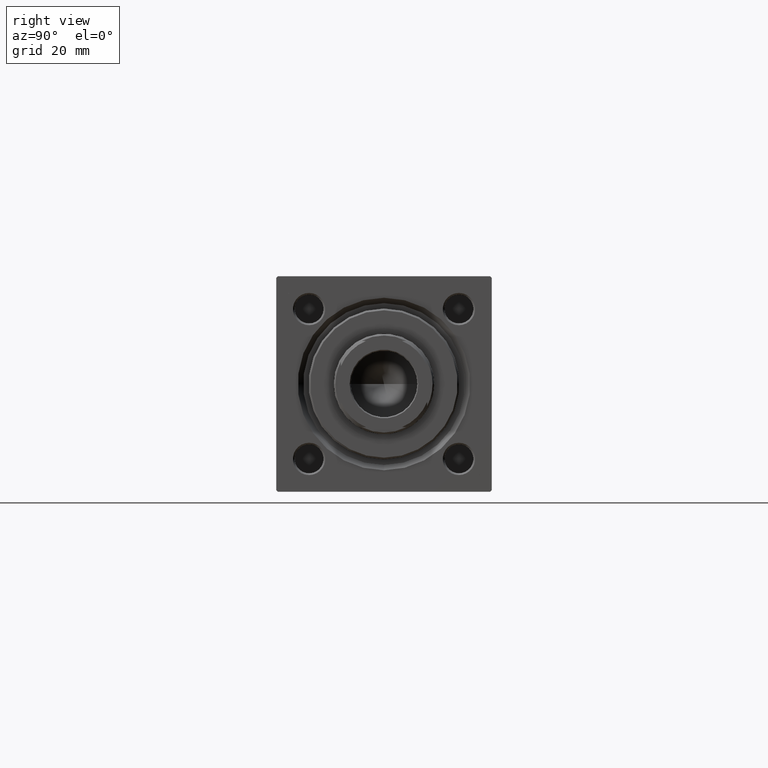
[diagram: clean part render]
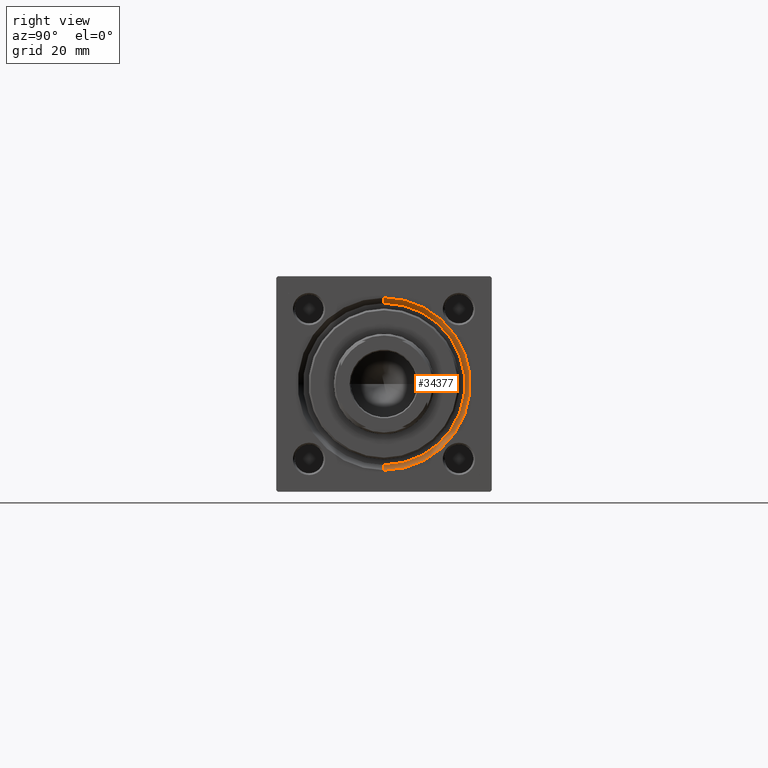
[diagram: same view with one face highlighted and labeled with its STEP entity id]
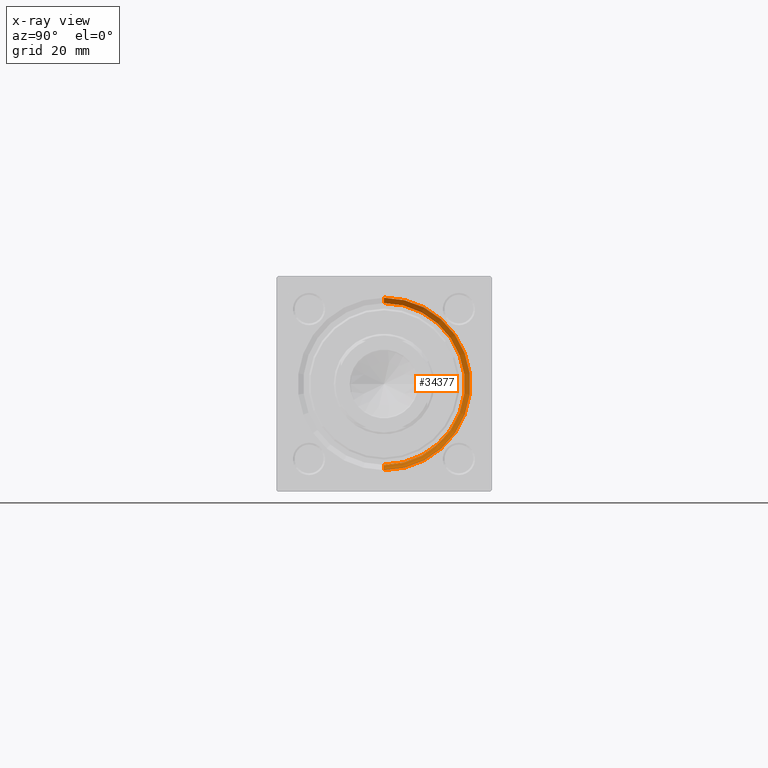
[diagram: x-ray of the same camera — body ghosted, the highlighted face saturated]
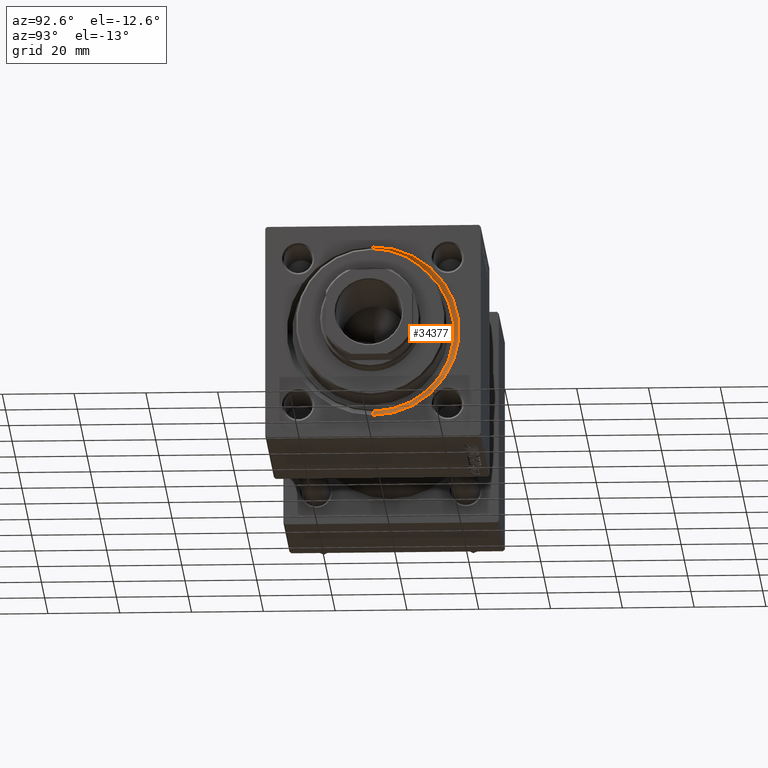
[diagram: same view with one face highlighted and labeled with its STEP entity id]
A machine part, right view. The second image highlights one B-rep face of the part: STEP entity #34377.
The next image is the same camera in x-ray: the body ghosted, the highlighted face saturated — about 0% of this face is hidden behind the body in this view.
A second angle (auxiliary view) of the same face is appended — the face is thin or edge-on in the first view.
In plain terms, the highlighted conical surface has half-angle 45 deg.
Its self-contained STEP definition (entity closure, byte-faithful):
#37 = EDGE_CURVE ( 'NONE', #8221, #7504, #24513, .T. ) ;
#1224 = CARTESIAN_POINT ( 'NONE',  ( 148.0000000000000000, 2.939152317953652628E-15, 24.00000000000003908 ) ) ;
#2150 = ORIENTED_EDGE ( 'NONE', *, *, #7992, .F. ) ;
#3736 = CONICAL_SURFACE ( 'NONE', #31358, 22.50000000000000355, 0.7853981633974415066 ) ;
#7504 = VERTEX_POINT ( 'NONE', #28902 ) ;
#7896 = CARTESIAN_POINT ( 'NONE',  ( 148.0000000000000000, 0.000000000000000000, 0.000000000000000000 ) ) ;
#7992 = EDGE_CURVE ( 'NONE', #11476, #8221, #35833, .T. ) ;
#8152 = DIRECTION ( 'NONE',  ( 0.000000000000000000, 0.000000000000000000, 1.000000000000000000 ) ) ;
#8221 = VERTEX_POINT ( 'NONE', #1224 ) ;
#10378 = CARTESIAN_POINT ( 'NONE',  ( 146.4999999999999432, 0.000000000000000000, -22.50000000000000355 ) ) ;
#11476 = VERTEX_POINT ( 'NONE', #32335 ) ;
#12972 = CARTESIAN_POINT ( 'NONE',  ( 146.4999999999999432, 2.755455298081545172E-15, 22.50000000000000355 ) ) ;
#13177 = CIRCLE ( 'NONE', #39920, 22.50000000000000355 ) ;
#13428 = EDGE_CURVE ( 'NONE', #37423, #11476, #13177, .T. ) ;
#13842 = ORIENTED_EDGE ( 'NONE', *, *, #42156, .T. ) ;
#16221 = VECTOR ( 'NONE', #23908, 1000.000000000000000 ) ;
#18350 = CARTESIAN_POINT ( 'NONE',  ( 146.4999999999999432, 0.000000000000000000, 0.000000000000000000 ) ) ;
#19613 = CARTESIAN_POINT ( 'NONE',  ( 146.4999999999999432, 0.000000000000000000, 0.000000000000000000 ) ) ;
#22290 = ORIENTED_EDGE ( 'NONE', *, *, #13428, .F. ) ;
#23908 = DIRECTION ( 'NONE',  ( 0.7071067811865524577, 8.659560562354874926E-17, 0.7071067811865426878 ) ) ;
#24513 = CIRCLE ( 'NONE', #29378, 24.00000000000003908 ) ;
#25869 = DIRECTION ( 'NONE',  ( 0.7071067811865524577, 0.000000000000000000, -0.7071067811865426878 ) ) ;
#27245 = ORIENTED_EDGE ( 'NONE', *, *, #37, .F. ) ;
#27738 = DIRECTION ( 'NONE',  ( 1.000000000000000000, 0.000000000000000000, 0.000000000000000000 ) ) ;
#28902 = CARTESIAN_POINT ( 'NONE',  ( 148.0000000000000000, 0.000000000000000000, -24.00000000000003908 ) ) ;
#29378 = AXIS2_PLACEMENT_3D ( 'NONE', #7896, #43691, #8152 ) ;
#30047 = DIRECTION ( 'NONE',  ( 0.000000000000000000, 0.000000000000000000, 1.000000000000000000 ) ) ;
#30807 = FACE_OUTER_BOUND ( 'NONE', #41357, .T. ) ;
#31358 = AXIS2_PLACEMENT_3D ( 'NONE', #19613, #27738, #43221 ) ;
#32335 = CARTESIAN_POINT ( 'NONE',  ( 146.4999999999999432, 2.755455298081545172E-15, 22.50000000000000355 ) ) ;
#34377 = ADVANCED_FACE ( 'NONE', ( #30807 ), #3736, .F. ) ;
#34955 = CARTESIAN_POINT ( 'NONE',  ( 146.4999999999999432, 0.000000000000000000, -22.50000000000000355 ) ) ;
#35833 = LINE ( 'NONE', #12972, #16221 ) ;
#37423 = VERTEX_POINT ( 'NONE', #34955 ) ;
#39920 = AXIS2_PLACEMENT_3D ( 'NONE', #18350, #41199, #30047 ) ;
#41199 = DIRECTION ( 'NONE',  ( 1.000000000000000000, 0.000000000000000000, 0.000000000000000000 ) ) ;
#41357 = EDGE_LOOP ( 'NONE', ( #2150, #22290, #13842, #27245 ) ) ;
#42156 = EDGE_CURVE ( 'NONE', #37423, #7504, #45165, .T. ) ;
#43221 = DIRECTION ( 'NONE',  ( 0.000000000000000000, 0.000000000000000000, -1.000000000000000000 ) ) ;
#43691 = DIRECTION ( 'NONE',  ( -1.000000000000000000, 0.000000000000000000, -0.000000000000000000 ) ) ;
#45165 = LINE ( 'NONE', #10378, #49318 ) ;
#49318 = VECTOR ( 'NONE', #25869, 1000.000000000000000 ) ;